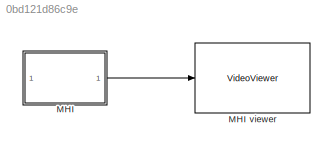
MODEL slx_0bd121d86c9e
KIND model
CONFIG AbsTol = auto
CONFIG EnableMultiTasking = on
CONFIG FixedStep = auto
CONFIG MaxStep = auto
CONFIG MinStep = auto
CONFIG RelTol = 1e-3
CONFIG SampleTimeConstraint = Unconstrained
CONFIG Solver = ode45
CONFIG SolverName = ode45
CONFIG StartTime = 0.0
CONFIG StopTime = 10.0
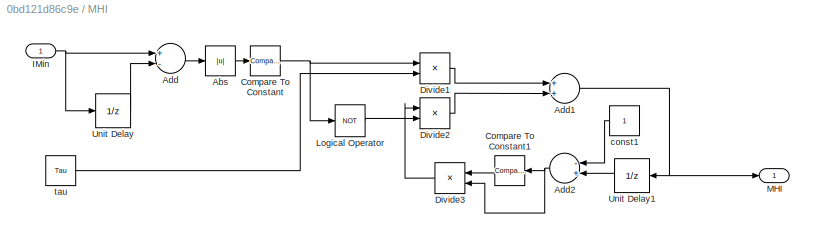
BLOCK [SubSystem] MHI
  Ports = [1, 1]
  RequestExecContextInheritance = off
  Variant = off
BLOCK [VideoViewer] MHI viewer
  FigPos = [894 577 410 300]
  Ports = [1]
  ScopeSpecificationString = vipscopes.VideoViewerScopeCfg('CurrentConfiguration', extmgr.ConfigurationSet(extmgr.Configuration('Core','General UI',true),extmgr.Configuration('Core','Source UI',true),extmgr.Configuration('Sources','WiredSimulink',true),extmgr.Configuration('Visuals','Video',true,'ColorMapExpression','jet(6)','UseDataRange',true,'DataRangeMax',6),extmgr.Configuration('Tools','Image Navigation Tools',true,'Magn...<+201ch>
  colormapValue = jet(6)
  maxInputVal = 6
  specRange = on
  useColorMap = on
BLOCK [Abs] MHI/Abs
  SaturateOnIntegerOverflow = off
BLOCK [Sum] MHI/Add
  InputSameDT = off
  Inputs = +-
  OutDataTypeStr = int16
  Ports = [2, 1]
  SaturateOnIntegerOverflow = off
BLOCK [Sum] MHI/Add1
  InputSameDT = off
  OutDataTypeStr = double
  Ports = [2, 1]
  SaturateOnIntegerOverflow = off
BLOCK [Sum] MHI/Add2
  InputSameDT = off
  Inputs = -+
  OutDataTypeStr = double
  Ports = [2, 1]
  SaturateOnIntegerOverflow = off
BLOCK [Reference] MHI/Compare To Constant  REF=simulink/Logic and Bit
Operations/Compare
To Constant
  Ports = [1, 1]
  SourceBlock = simulink/Logic and Bit\nOperations/Compare\nTo Constant
  SourceType = Compare To Constant
BLOCK [Reference] MHI/Compare To Constant1  REF=simulink/Logic and Bit
Operations/Compare
To Constant
  Ports = [1, 1]
  SourceBlock = simulink/Logic and Bit\nOperations/Compare\nTo Constant
  SourceType = Compare To Constant
BLOCK [Product] MHI/Divide1
  InputSameDT = off
  Inputs = **
  OutDataTypeStr = Inherit: Inherit via internal rule
  Ports = [2, 1]
  RndMeth = Floor
  SaturateOnIntegerOverflow = off
BLOCK [Product] MHI/Divide2
  InputSameDT = off
  Inputs = **
  OutDataTypeStr = Inherit: Inherit via internal rule
  Ports = [2, 1]
  RndMeth = Floor
  SaturateOnIntegerOverflow = off
BLOCK [Product] MHI/Divide3
  InputSameDT = off
  Inputs = **
  OutDataTypeStr = Inherit: Inherit via internal rule
  Ports = [2, 1]
  RndMeth = Floor
  SaturateOnIntegerOverflow = off
BLOCK [Inport] MHI/IMin
  IconDisplay = Port number
BLOCK [Logic] MHI/Logical Operator
  AllPortsSameDT = off
  Operator = NOT
  OutDataTypeStr = boolean
  Ports = [1, 1]
BLOCK [Outport] MHI/MHI
  IconDisplay = Port number
BLOCK [UnitDelay] MHI/Unit Delay
  SampleTime = -1
BLOCK [UnitDelay] MHI/Unit Delay1
  SampleTime = -1
BLOCK [Constant] MHI/const1
BLOCK [Constant] MHI/tau
  Value = Tau
LINE MHI/Abs:1 -> MHI/Compare To Constant:1
NET MHI/Add1:1 -> MHI/MHI:1, MHI/Unit Delay1:1
NET MHI/Add2:1 -> MHI/Compare To Constant1:1, MHI/Divide3:2
LINE MHI/Add:1 -> MHI/Abs:1
LINE MHI/Compare To Constant1:1 -> MHI/Divide3:1
NET MHI/Compare To Constant:1 -> MHI/Divide1:1, MHI/Logical Operator:1
LINE MHI/Divide1:1 -> MHI/Add1:1
LINE MHI/Divide2:1 -> MHI/Add1:2
LINE MHI/Divide3:1 -> MHI/Divide2:1
NET MHI/IMin:1 -> MHI/Add:1, MHI/Unit Delay:1
LINE MHI/Logical Operator:1 -> MHI/Divide2:2
LINE MHI/Unit Delay1:1 -> MHI/Add2:2
LINE MHI/Unit Delay:1 -> MHI/Add:2
LINE MHI/const1:1 -> MHI/Add2:1
LINE MHI/tau:1 -> MHI/Divide1:2
LINE MHI:1 -> MHI viewer:1
note: NET lines group one-source signal fan-out (src -> all destinations, sorted); 1:1 wires keep LINE
